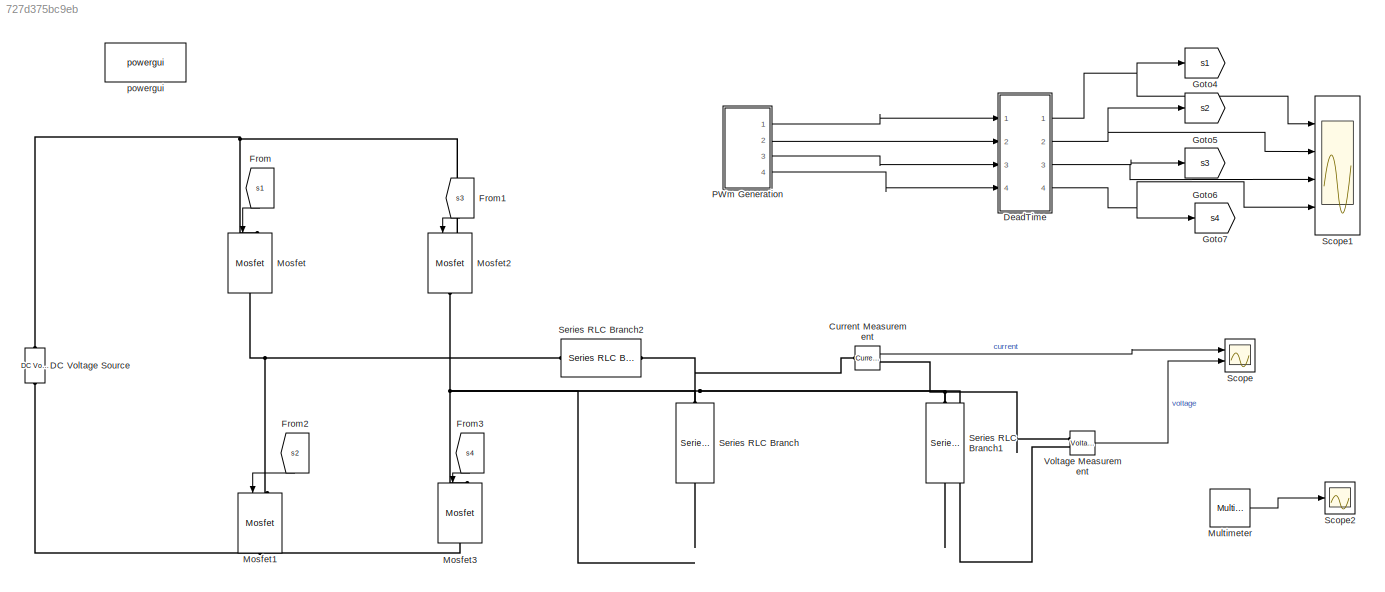
MODEL slx_727d375bc9eb
KIND model
CONFIG AbsTol = auto
CONFIG EnableMultiTasking = off
CONFIG FixedStep = auto
CONFIG MaxStep = auto
CONFIG MinStep = auto
CONFIG RelTol = 1e-3
CONFIG SampleTimeConstraint = Unconstrained
CONFIG Solver = VariableStepAuto
CONFIG SolverName = VariableStepAuto
CONFIG StartTime = 0.0
CONFIG StopTime = 0.1
BLOCK [Reference] Current Measurement  REF=powerlib/Measurements/Current Measurement
  Ports = [0, 1, 0, 0, 0, 1, 1]
  SourceBlock = powerlib/Measurements/Current Measurement
  SourceProductBaseCode = PS
  SourceProductName = Simscape Electrical
  SourceType = Current Measurement
  UserDataPersistent = on
BLOCK [Reference] DC Voltage Source  REF=powerlib/Electrical
Sources/DC Voltage Source
  Ports = [0, 0, 0, 0, 0, 1, 1]
  SourceBlock = powerlib/Electrical\nSources/DC Voltage Source
  SourceProductBaseCode = PS
  SourceProductName = Simscape Electrical
  SourceType = DC Voltage Source
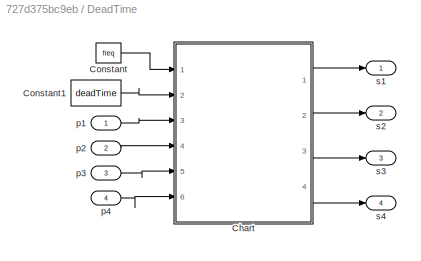
BLOCK [SubSystem] DeadTime
  Ports = [4, 4]
  RequestExecContextInheritance = off
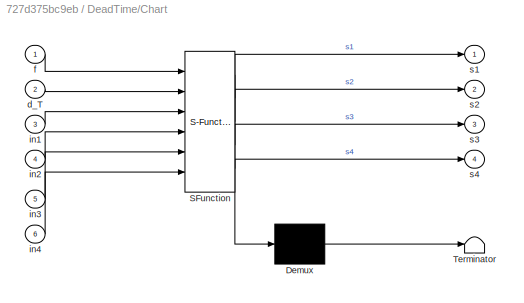
BLOCK [SubSystem] DeadTime/Chart
  BlockKeywords = __PRM__SERIALIZED__DATA__:Stateflow Chart,Stateflow Diagram
  ErrorFcn = Stateflow.Translate.translate
  PermitHierarchicalResolution = ExplicitOnly
  Ports = [6, 4]
  RequestExecContextInheritance = off
  SFBlockType = Chart
  TreatAsAtomicUnit = on
BLOCK [Demux] DeadTime/Chart/ Demux 
  Outputs = 1
  Ports = [1, 1]
BLOCK [S-Function] DeadTime/Chart/ SFunction 
  EnableBusSupport = on
  FunctionName = sf_sfun
  PortCounts = [6 5]
  Ports = [6, 5]
  SFcnIsStateOwnerBlock = off
  SFunctionDeploymentMode = off
  Tag = Stateflow S-Function 3
BLOCK [Terminator] DeadTime/Chart/ Terminator 
BLOCK [Inport] DeadTime/Chart/d_T
  IconDisplay = Port number
  Port = 2
BLOCK [Inport] DeadTime/Chart/f
  IconDisplay = Port number
BLOCK [Inport] DeadTime/Chart/in1
  IconDisplay = Port number
  Port = 3
BLOCK [Inport] DeadTime/Chart/in2
  IconDisplay = Port number
  Port = 4
BLOCK [Inport] DeadTime/Chart/in3
  IconDisplay = Port number
  Port = 5
BLOCK [Inport] DeadTime/Chart/in4
  IconDisplay = Port number
  Port = 6
BLOCK [Outport] DeadTime/Chart/s1
  IconDisplay = Port number
BLOCK [Outport] DeadTime/Chart/s2
  IconDisplay = Port number
  Port = 2
BLOCK [Outport] DeadTime/Chart/s3
  IconDisplay = Port number
  Port = 3
BLOCK [Outport] DeadTime/Chart/s4
  IconDisplay = Port number
  Port = 4
BLOCK [Constant] DeadTime/Constant
  Value = freq
BLOCK [Constant] DeadTime/Constant1
  OutDataTypeStr = double
  Value = deadTime
BLOCK [Inport] DeadTime/p1
  IconDisplay = Port number
BLOCK [Inport] DeadTime/p2
  IconDisplay = Port number
  Port = 2
BLOCK [Inport] DeadTime/p3
  IconDisplay = Port number
  Port = 3
BLOCK [Inport] DeadTime/p4
  IconDisplay = Port number
  Port = 4
BLOCK [Outport] DeadTime/s1
  IconDisplay = Port number
BLOCK [Outport] DeadTime/s2
  IconDisplay = Port number
  Port = 2
BLOCK [Outport] DeadTime/s3
  IconDisplay = Port number
  Port = 3
BLOCK [Outport] DeadTime/s4
  IconDisplay = Port number
  Port = 4
BLOCK [From] From
  GotoTag = s1
BLOCK [From] From1
  GotoTag = s3
BLOCK [From] From2
  GotoTag = s2
BLOCK [From] From3
  GotoTag = s4
BLOCK [Goto] Goto4
  GotoTag = s1
BLOCK [Goto] Goto5
  GotoTag = s2
BLOCK [Goto] Goto6
  GotoTag = s3
BLOCK [Goto] Goto7
  GotoTag = s4
BLOCK [Reference] Mosfet  REF=powerlib/Power
Electronics/Mosfet
  Ports = [1, 0, 0, 0, 0, 1, 1]
  SourceBlock = powerlib/Power\nElectronics/Mosfet
  SourceProductBaseCode = PS
  SourceProductName = Simscape Electrical
  SourceType = Mosfet
BLOCK [Reference] Mosfet1  REF=powerlib/Power
Electronics/Mosfet
  Ports = [1, 0, 0, 0, 0, 1, 1]
  SourceBlock = powerlib/Power\nElectronics/Mosfet
  SourceProductBaseCode = PS
  SourceProductName = Simscape Electrical
  SourceType = Mosfet
BLOCK [Reference] Mosfet2  REF=powerlib/Power
Electronics/Mosfet
  Ports = [1, 0, 0, 0, 0, 1, 1]
  SourceBlock = powerlib/Power\nElectronics/Mosfet
  SourceProductBaseCode = PS
  SourceProductName = Simscape Electrical
  SourceType = Mosfet
BLOCK [Reference] Mosfet3  REF=powerlib/Power
Electronics/Mosfet
  Ports = [1, 0, 0, 0, 0, 1, 1]
  SourceBlock = powerlib/Power\nElectronics/Mosfet
  SourceProductBaseCode = PS
  SourceProductName = Simscape Electrical
  SourceType = Mosfet
BLOCK [Reference] Multimeter  REF=powerlib/Measurements/Multimeter
  Ports = [0, 1]
  SourceBlock = powerlib/Measurements/Multimeter
  SourceProductBaseCode = PS
  SourceProductName = Simscape Electrical
  SourceType = MultimeterPSB
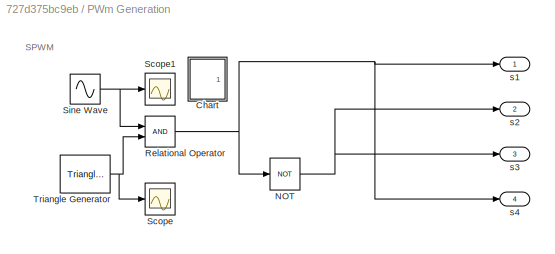
BLOCK [SubSystem] PWm Generation
  Ports = [0, 4]
  RequestExecContextInheritance = off
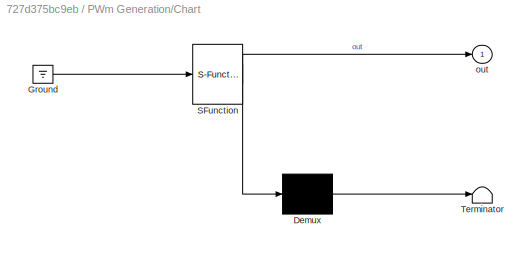
BLOCK [SubSystem] PWm Generation/Chart
  BlockKeywords = __PRM__SERIALIZED__DATA__:Stateflow Chart,Stateflow Diagram
  Commented = on
  ErrorFcn = Stateflow.Translate.translate
  PermitHierarchicalResolution = ExplicitOnly
  Ports = [0, 1]
  RequestExecContextInheritance = off
  SFBlockType = Chart
  TreatAsAtomicUnit = on
BLOCK [Demux] PWm Generation/Chart/ Demux 
  Outputs = 1
  Ports = [1, 1]
BLOCK [Ground] PWm Generation/Chart/ Ground 
BLOCK [S-Function] PWm Generation/Chart/ SFunction 
  EnableBusSupport = on
  FunctionName = sf_sfun
  PortCounts = [1 2]
  Ports = [1, 2]
  SFcnIsStateOwnerBlock = off
  SFunctionDeploymentMode = off
  Tag = Stateflow S-Function 1
BLOCK [Terminator] PWm Generation/Chart/ Terminator 
BLOCK [Outport] PWm Generation/Chart/out
  IconDisplay = Port number
BLOCK [Logic] PWm Generation/NOT
  AllPortsSameDT = off
  IconShape = distinctive
  Operator = NOT
  OutDataTypeStr = boolean
  Ports = [1, 1]
BLOCK [RelationalOperator] PWm Generation/Relational Operator
  InputSameDT = off
  OutDataTypeStr = boolean
  Ports = [2, 1]
  RndMeth = Simplest
BLOCK [Scope] PWm Generation/Scope
  Floating = off
  NumInputPorts = 1
  Ports = [1]
  ScopeSpecificationString = Simulink.scopes.TimeScopeBlockCfg('CurrentConfiguration', extmgr.ConfigurationSet(extmgr.Configuration('Core','General UI',true),extmgr.Configuration('Core','Source UI',true),extmgr.Configuration('Sources','WiredSimulink',true,'DataLoggingVariableName','ScopeData2'),extmgr.Configuration('Visuals','Time Domain',true,'SerializedDisplays',{struct('MinYLimReal','-1.25','MaxYLimReal','1.25','YLabelReal...<+1384ch>
BLOCK [Scope] PWm Generation/Scope1
  Floating = off
  NumInputPorts = 1
  Ports = [1]
  ScopeSpecificationString = Simulink.scopes.TimeScopeBlockCfg('CurrentConfiguration', extmgr.ConfigurationSet(extmgr.Configuration('Core','General UI',true),extmgr.Configuration('Core','Source UI',true),extmgr.Configuration('Sources','WiredSimulink',true,'DataLoggingVariableName','ScopeData3'),extmgr.Configuration('Visuals','Time Domain',true,'SerializedDisplays',{struct('MinYLimReal','-1.25','MaxYLimReal','1.24999','YLabelR...<+1381ch>
BLOCK [Sin] PWm Generation/Sine Wave
  Frequency = 2*pi*50
  Ports = [0, 1]
  SampleTime = 0
BLOCK [Reference] PWm Generation/Triangle Generator  REF=powerlib_meascontrol/Pulse & Signal
Generators/Triangle
Generator
  Ports = [0, 1]
  SourceBlock = powerlib_meascontrol/Pulse & Signal\nGenerators/Triangle\nGenerator
  SourceProductBaseCode = PS
  SourceProductName = Simscape Electrical
  SourceType = Triangle Generator
BLOCK [Outport] PWm Generation/s1
  IconDisplay = Port number
BLOCK [Outport] PWm Generation/s2
  IconDisplay = Port number
  Port = 2
BLOCK [Outport] PWm Generation/s3
  IconDisplay = Port number
  Port = 3
BLOCK [Outport] PWm Generation/s4
  IconDisplay = Port number
  Port = 4
BLOCK [Scope] Scope
  Floating = off
  NumInputPorts = 2
  Ports = [2]
  ScopeSpecificationString = Simulink.scopes.TimeScopeBlockCfg('CurrentConfiguration', extmgr.ConfigurationSet(extmgr.Configuration('Core','General UI',true,'FigureColor',[1 1 1]),extmgr.Configuration('Core','Source UI',true),extmgr.Configuration('Sources','WiredSimulink',true),extmgr.Configuration('Visuals','Time Domain',true,'SerializedDisplays',{struct('MinYLimReal','-4.93423','MaxYLimReal','4.93423','YLabelReal','current ...<+3771ch>
BLOCK [Scope] Scope1
  Floating = off
  NumInputPorts = 4
  Ports = [4]
  ScopeSpecificationString = Simulink.scopes.TimeScopeBlockCfg('CurrentConfiguration', extmgr.ConfigurationSet(extmgr.Configuration('Core','General UI',true),extmgr.Configuration('Core','Source UI',true),extmgr.Configuration('Sources','WiredSimulink',true,'DataLoggingVariableName','ScopeData1'),extmgr.Configuration('Visuals','Time Domain',true,'SerializedDisplays',{struct('MinYLimReal','-0.125','MaxYLimReal','1.125','YLabelRe...<+3440ch>
BLOCK [Scope] Scope2
  Floating = off
  NumInputPorts = 1
  Ports = [1]
  ScopeSpecificationString = Simulink.scopes.TimeScopeBlockCfg('CurrentConfiguration', extmgr.ConfigurationSet(extmgr.Configuration('Core','General UI',true),extmgr.Configuration('Core','Source UI',true),extmgr.Configuration('Sources','WiredSimulink',true,'DataLoggingVariableName','i','DataLogging',true,'DataLoggingSaveFormat','StructureWithTime'),extmgr.Configuration('Visuals','Time Domain',true,'SerializedDisplays',{struct(...<+1448ch>
BLOCK [Reference] Series RLC Branch  REF=powerlib/Elements/Series RLC Branch
  Ports = [0, 0, 0, 0, 0, 1, 1]
  SourceBlock = powerlib/Elements/Series RLC Branch
  SourceProductBaseCode = PS
  SourceProductName = Simscape Electrical
  SourceType = Series RLC Branch
BLOCK [Reference] Series RLC Branch1  REF=powerlib/Elements/Series RLC Branch
  Ports = [0, 0, 0, 0, 0, 1, 1]
  SourceBlock = powerlib/Elements/Series RLC Branch
  SourceProductBaseCode = PS
  SourceProductName = Simscape Electrical
  SourceType = Series RLC Branch
BLOCK [Reference] Series RLC Branch2  REF=powerlib/Elements/Series RLC Branch
  Ports = [0, 0, 0, 0, 0, 1, 1]
  SourceBlock = powerlib/Elements/Series RLC Branch
  SourceProductBaseCode = PS
  SourceProductName = Simscape Electrical
  SourceType = Series RLC Branch
BLOCK [Reference] Voltage Measurement  REF=powerlib/Measurements/Voltage Measurement
  Ports = [0, 1, 0, 0, 0, 2]
  SourceBlock = powerlib/Measurements/Voltage Measurement
  SourceProductBaseCode = PS
  SourceProductName = Simscape Electrical
  SourceType = Voltage Measurement
  UserDataPersistent = on
BLOCK [Reference] powergui  REF=powerlib/powergui
  Ports = []
  Priority = 1
  SourceBlock = powerlib/powergui
  SourceProductBaseCode = PS
  SourceProductName = Simscape Electrical
  SourceType = PSB option menu block
ANNOTATION PWm Generation: SPWM
LINE Current Measurement:1 -> Scope:1
LINE DeadTime/Chart:1 -> DeadTime/s1:1
LINE DeadTime/Chart:2 -> DeadTime/s2:1
LINE DeadTime/Chart:3 -> DeadTime/s3:1
LINE DeadTime/Chart:4 -> DeadTime/s4:1
LINE DeadTime/Constant1:1 -> DeadTime/Chart:2
LINE DeadTime/Constant:1 -> DeadTime/Chart:1
LINE DeadTime/p1:1 -> DeadTime/Chart:3
LINE DeadTime/p2:1 -> DeadTime/Chart:4
LINE DeadTime/p3:1 -> DeadTime/Chart:5
LINE DeadTime/p4:1 -> DeadTime/Chart:6
NET DeadTime:1 -> Goto4:1, Scope1:1
NET DeadTime:2 -> Goto5:1, Scope1:2
NET DeadTime:3 -> Goto6:1, Scope1:3
NET DeadTime:4 -> Goto7:1, Scope1:4
LINE From1:1 -> Mosfet2:1
LINE From2:1 -> Mosfet1:1
LINE From3:1 -> Mosfet3:1
LINE From:1 -> Mosfet:1
LINE Multimeter:1 -> Scope2:1
NET PWm Generation/NOT:1 -> PWm Generation/s2:1, PWm Generation/s3:1
NET PWm Generation/Relational Operator:1 -> PWm Generation/NOT:1, PWm Generation/s1:1, PWm Generation/s4:1
NET PWm Generation/Sine Wave:1 -> PWm Generation/Relational Operator:1, PWm Generation/Scope1:1
NET PWm Generation/Triangle Generator:1 -> PWm Generation/Relational Operator:2, PWm Generation/Scope:1
LINE PWm Generation:1 -> DeadTime:1
LINE PWm Generation:2 -> DeadTime:2
LINE PWm Generation:3 -> DeadTime:3
LINE PWm Generation:4 -> DeadTime:4
LINE Voltage Measurement:1 -> Scope:2
PNET net1: Current Measurement:LConn1 -- Series RLC Branch2:LConn1 -- Series RLC Branch:LConn1
PNET net2: Current Measurement:RConn1 -- Series RLC Branch1:LConn1 -- Voltage Measurement:LConn1
PNET net3: DC Voltage Source:LConn1 -- Mosfet1:RConn1 -- Mosfet3:RConn1
PNET net4: DC Voltage Source:RConn1 -- Mosfet2:LConn1 -- Mosfet:LConn1
PNET net5: Mosfet1:LConn1 -- Mosfet:RConn1 -- Series RLC Branch2:RConn1
PNET net6: Mosfet2:RConn1 -- Mosfet3:LConn1 -- Series RLC Branch1:RConn1 -- Series RLC Branch:RConn1 -- Voltage Measurement:LConn2
note: NET lines group one-source signal fan-out (src -> all destinations, sorted); 1:1 wires keep LINE; PNET lines group multi-terminal physical nets as a canonical sorted terminal list (undirected conserving connections); 2-terminal nets keep the pairwise PLINE form
CHART PWm Generation/Chart states=2 transitions=3
  STATE_LABEL 'on\nout=true;'
  STATE_LABEL 'off\nout=false;'
CHART DeadTime/Chart states=2 transitions=3
  STATE_LABEL 'main\nT1=(1/f)/2-d_T;\ns1=in1;\ns2=in2\ns3=in3;\ns4=in4;'
  STATE_LABEL 'DeadTime\ns1=false;\ns2=false;\ns3=false;\ns4=false;\n'
